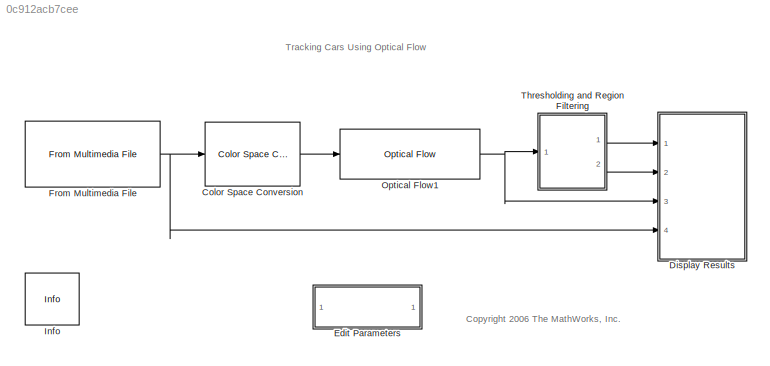
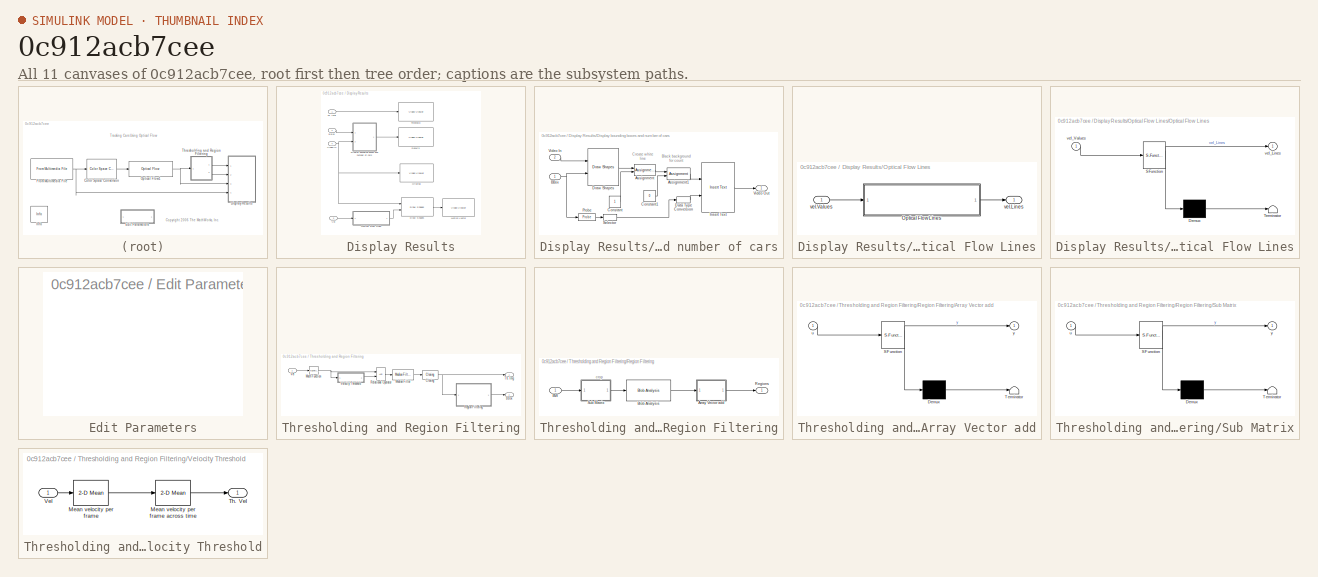
[diagram: thumbnail index - all 11 canvases of the model, root first then tree order]
MODEL slx_0c912acb7cee
KIND model
CONFIG AbsTol = auto
CONFIG FixedStep = auto
CONFIG MaxStep = auto
CONFIG MinStep = auto
CONFIG RelTol = 1e-3
CONFIG SampleTimeConstraint = Unconstrained
CONFIG Solver = FixedStepDiscrete
CONFIG SolverMode = Auto
CONFIG SolverName = FixedStepDiscrete
CONFIG StartTime = 0.0
CONFIG StopTime = inf
WORKSPACE source: MATLAB code (in-file)
WORKSPACE line_row = 22
BLOCK [Reference] Color Space Conversion  REF=visionconversions/Color Space
 Conversion
  Ports = [1, 1]
  SourceBlock = visionconversions/Color Space\n Conversion
  SourceType = Color Space Conversion
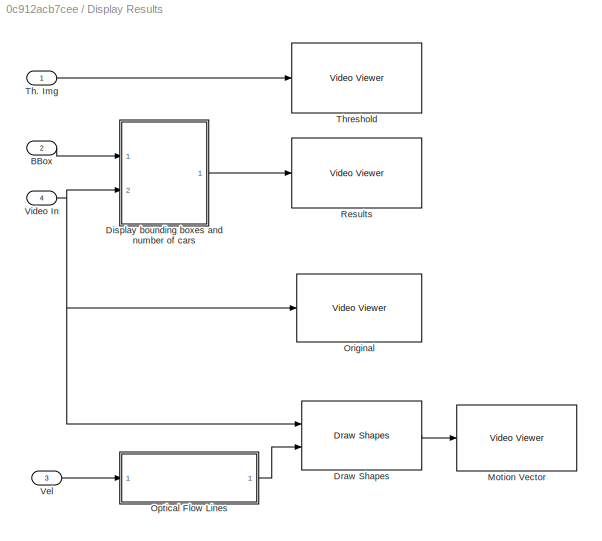
BLOCK [SubSystem] Display Results
  Ports = [4]
  RequestExecContextInheritance = off
  Variant = off
BLOCK [Inport] Display Results/BBox
  IconDisplay = Port number
  Port = 2
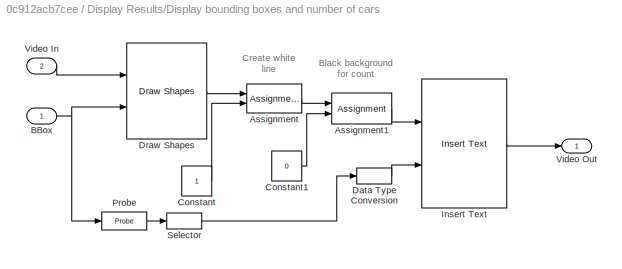
BLOCK [SubSystem] Display Results/Display bounding boxes and number of cars
  Ports = [2, 1]
  RequestExecContextInheritance = off
  Variant = off
BLOCK [Assignment] Display Results/Display bounding boxes and number of cars/Assignment
  IndexOptions = Index vector (dialog),Assign all,Assign all
  Indices = [line_row:line_row+1],[],[]
  NumberOfDimensions = 3
  OutputSizes = 1, 1
  Ports = [2, 1]
BLOCK [Assignment] Display Results/Display bounding boxes and number of cars/Assignment1
  IndexOptions = Index vector (dialog),Index vector (dialog),Assign all
  Indices = [1:15],[1:30],[]
  NumberOfDimensions = 3
  OutputSizes = 1, 1
  Ports = [2, 1]
BLOCK [Inport] Display Results/Display bounding boxes and number of cars/BBox
  IconDisplay = Port number
BLOCK [Constant] Display Results/Display bounding boxes and number of cars/Constant
  OutDataTypeStr = single
BLOCK [Constant] Display Results/Display bounding boxes and number of cars/Constant1
  OutDataTypeStr = single
  Value = 0
BLOCK [DataTypeConversion] Display Results/Display bounding boxes and number of cars/Data Type Conversion
  OutDataTypeStr = uint8
  RndMeth = Floor
  SaturateOnIntegerOverflow = off
BLOCK [Reference] Display Results/Display bounding boxes and number of cars/Draw Shapes  REF=visiontextngfix/Draw Shapes
  Ports = [2, 1]
  SourceBlock = visiontextngfix/Draw Shapes
  SourceType = Draw Shapes
BLOCK [Reference] Display Results/Display bounding boxes and number of cars/Insert Text  REF=visiontextngfix/Insert Text
  Ports = [2, 1]
  SourceBlock = visiontextngfix/Insert Text
  SourceType = Insert Text
BLOCK [Probe] Display Results/Display bounding boxes and number of cars/Probe
  Ports = [1, 1]
  ProbeComplexSignal = off
  ProbeSampleTime = off
  ProbeSignalDimensions = on
  ProbeWidth = off
  ProbeWidthDataType = uint8
BLOCK [Selector] Display Results/Display bounding boxes and number of cars/Selector
  IndexOptions = Index vector (dialog),Index vector (dialog)
  Indices = 1,1
  InputPortWidth = 3
  NumberOfDimensions = 2
  OutputSizes = 99,1
  Ports = [1, 1]
BLOCK [Inport] Display Results/Display bounding boxes and number of cars/Video In
  IconDisplay = Port number
  Port = 2
BLOCK [Outport] Display Results/Display bounding boxes and number of cars/Video Out
  IconDisplay = Port number
BLOCK [Reference] Display Results/Draw Shapes  REF=visiontextngfix/Draw Shapes
  Ports = [2, 1]
  SourceBlock = visiontextngfix/Draw Shapes
  SourceType = Draw Shapes
BLOCK [Reference] Display Results/Motion Vector  REF=visionsinks/Video Viewer
  Ports = [1]
  SourceBlock = visionsinks/Video Viewer
  SourceType = Video Viewer
  UserDataPersistent = on
BLOCK [SubSystem] Display Results/Optical Flow Lines
  Ports = [1, 1]
  RequestExecContextInheritance = off
  Variant = off
BLOCK [SubSystem] Display Results/Optical Flow Lines/Optical Flow Lines
  ErrorFcn = Stateflow.Translate.translate
  PermitHierarchicalResolution = ExplicitOnly
  Ports = [1, 1]
  RequestExecContextInheritance = off
  SFBlockType = MATLAB Function
  TreatAsAtomicUnit = on
  Variant = off
BLOCK [Demux] Display Results/Optical Flow Lines/Optical Flow Lines/ Demux 
  Outputs = 1
  Ports = [1, 1]
BLOCK [S-Function] Display Results/Optical Flow Lines/Optical Flow Lines/ SFunction 
  EnableBusSupport = off
  FunctionName = sf_sfun
  Parameters = scaleFactor
  PortCounts = [1 2]
  Ports = [1, 2]
  SFunctionDeploymentMode = off
  Tag = Stateflow S-Function viptrafficof 1
BLOCK [Terminator] Display Results/Optical Flow Lines/Optical Flow Lines/ Terminator 
BLOCK [Outport] Display Results/Optical Flow Lines/Optical Flow Lines/vel_Lines
  IconDisplay = Port number
BLOCK [Inport] Display Results/Optical Flow Lines/Optical Flow Lines/vel_Values
  IconDisplay = Port number
BLOCK [Outport] Display Results/Optical Flow Lines/vel.Lines
  IconDisplay = Port number
BLOCK [Inport] Display Results/Optical Flow Lines/vel.Values
  IconDisplay = Port number
BLOCK [Reference] Display Results/Original  REF=visionsinks/Video Viewer
  Ports = [1]
  SourceBlock = visionsinks/Video Viewer
  SourceType = Video Viewer
  UserDataPersistent = on
BLOCK [Reference] Display Results/Results  REF=visionsinks/Video Viewer
  Ports = [1]
  SourceBlock = visionsinks/Video Viewer
  SourceType = Video Viewer
  UserDataPersistent = on
BLOCK [Inport] Display Results/Th. Img
  IconDisplay = Port number
BLOCK [Reference] Display Results/Threshold  REF=visionsinks/Video Viewer
  Ports = [1]
  SourceBlock = visionsinks/Video Viewer
  SourceType = Video Viewer
  UserDataPersistent = on
BLOCK [Inport] Display Results/Vel
  IconDisplay = Port number
  Port = 3
BLOCK [Inport] Display Results/Video In
  IconDisplay = Port number
  Port = 4
BLOCK [SubSystem] Edit Parameters
  Ports = []
  RequestExecContextInheritance = off
  Variant = off
BLOCK [Reference] From Multimedia File  REF=dspvision/From Multimedia File
  Ports = [0, 1]
  SourceBlock = dspvision/From Multimedia File
  SourceType = From Multimedia File
BLOCK [Reference] Info  REF=vipmisc/Info
  Ports = []
  SourceBlock = vipmisc/Info
  SourceType = Info
BLOCK [Reference] Optical Flow1  REF=visionanalysis/Optical Flow
  Ports = [1, 1]
  SourceBlock = visionanalysis/Optical Flow
  SourceType = Optical Flow
BLOCK [SubSystem] Thresholding and Region Filtering
  Ports = [1, 2]
  RequestExecContextInheritance = off
  Variant = off
BLOCK [Outport] Thresholding and Region Filtering/BBox
  IconDisplay = Port number
  Port = 2
BLOCK [Reference] Thresholding and Region Filtering/Closing  REF=visionmorphops/Closing
  Ports = [1, 1]
  SourceBlock = visionmorphops/Closing
  SourceType = Closing
BLOCK [Math] Thresholding and Region Filtering/Math Function
  Operator = magnitude^2
  Ports = [1, 1]
BLOCK [Reference] Thresholding and Region Filtering/Median Filter  REF=visionanalysis/Median Filter
  Ports = [1, 1]
  SourceBlock = visionanalysis/Median Filter
  SourceType = Median Filter
BLOCK [SubSystem] Thresholding and Region Filtering/Region Filtering
  Ports = [1, 1]
  RequestExecContextInheritance = off
  Variant = off
BLOCK [SubSystem] Thresholding and Region Filtering/Region Filtering/Array Vector add
  ErrorFcn = Stateflow.Translate.translate
  PermitHierarchicalResolution = ExplicitOnly
  Ports = [1, 1]
  RequestExecContextInheritance = off
  SFBlockType = MATLAB Function
  TreatAsAtomicUnit = on
  Variant = off
BLOCK [Demux] Thresholding and Region Filtering/Region Filtering/Array Vector add/ Demux 
  Outputs = 1
  Ports = [1, 1]
BLOCK [S-Function] Thresholding and Region Filtering/Region Filtering/Array Vector add/ SFunction 
  EnableBusSupport = off
  FunctionName = sf_sfun
  Parameters = line_row
  PortCounts = [1 2]
  Ports = [1, 2]
  SFunctionDeploymentMode = off
  Tag = Stateflow S-Function viptrafficof 2
BLOCK [Terminator] Thresholding and Region Filtering/Region Filtering/Array Vector add/ Terminator 
BLOCK [Inport] Thresholding and Region Filtering/Region Filtering/Array Vector add/u
  IconDisplay = Port number
BLOCK [Outport] Thresholding and Region Filtering/Region Filtering/Array Vector add/y
  IconDisplay = Port number
BLOCK [Inport] Thresholding and Region Filtering/Region Filtering/BW
  IconDisplay = Port number
BLOCK [Reference] Thresholding and Region Filtering/Region Filtering/Blob Analysis  REF=visionstatistics/Blob Analysis
  Ports = [1, 1]
  SourceBlock = visionstatistics/Blob Analysis
  SourceType = Blob Analysis
  Tag = vipblks_row_conv
BLOCK [Outport] Thresholding and Region Filtering/Region Filtering/Regions
  IconDisplay = Port number
BLOCK [SubSystem] Thresholding and Region Filtering/Region Filtering/Sub Matrix
  ErrorFcn = Stateflow.Translate.translate
  PermitHierarchicalResolution = ExplicitOnly
  Ports = [1, 1]
  RequestExecContextInheritance = off
  SFBlockType = MATLAB Function
  TreatAsAtomicUnit = on
  Variant = off
BLOCK [Demux] Thresholding and Region Filtering/Region Filtering/Sub Matrix/ Demux 
  Outputs = 1
  Ports = [1, 1]
BLOCK [S-Function] Thresholding and Region Filtering/Region Filtering/Sub Matrix/ SFunction 
  EnableBusSupport = off
  FunctionName = sf_sfun
  Parameters = line_row
  PortCounts = [1 2]
  Ports = [1, 2]
  SFunctionDeploymentMode = off
  Tag = Stateflow S-Function viptrafficof 3
BLOCK [Terminator] Thresholding and Region Filtering/Region Filtering/Sub Matrix/ Terminator 
BLOCK [Inport] Thresholding and Region Filtering/Region Filtering/Sub Matrix/u
  IconDisplay = Port number
BLOCK [Outport] Thresholding and Region Filtering/Region Filtering/Sub Matrix/y
  IconDisplay = Port number
BLOCK [RelationalOperator] Thresholding and Region Filtering/Relational Operator
  InputSameDT = off
  OutDataTypeStr = boolean
  Ports = [2, 1]
BLOCK [Outport] Thresholding and Region Filtering/Th. Img
  IconDisplay = Port number
BLOCK [Inport] Thresholding and Region Filtering/Vel
  IconDisplay = Port number
BLOCK [SubSystem] Thresholding and Region Filtering/Velocity Threshold
  Ports = [1, 1]
  RequestExecContextInheritance = off
  Variant = off
BLOCK [Reference] Thresholding and Region Filtering/Velocity Threshold/Mean velocity per frame  REF=visionstatistics/2-D Mean
  Ports = [1, 1]
  SourceBlock = visionstatistics/2-D Mean
  SourceType = 2-D Mean
  UserDataPersistent = on
BLOCK [Reference] Thresholding and Region Filtering/Velocity Threshold/Mean velocity per frame across time  REF=visionstatistics/2-D Mean
  Ports = [1, 1]
  SourceBlock = visionstatistics/2-D Mean
  SourceType = 2-D Mean
  UserDataPersistent = on
BLOCK [Outport] Thresholding and Region Filtering/Velocity Threshold/Th. Vel
  IconDisplay = Port number
BLOCK [Inport] Thresholding and Region Filtering/Velocity Threshold/Vel
  IconDisplay = Port number
ANNOTATION (root): <copyright redacted>
ANNOTATION (root): Tracking Cars Using Optical Flow
ANNOTATION Display Results/Display bounding boxes and number of cars: Black background for count
ANNOTATION Display Results/Display bounding boxes and number of cars: Create white line
ANNOTATION Thresholding and Region Filtering/Region Filtering: crop
LINE Color Space Conversion:1 -> Optical Flow1:1
LINE Display Results/BBox:1 -> Display Results/Display bounding boxes and number of cars:1
LINE Display Results/Display bounding boxes and number of cars/Assignment1:1 -> Display Results/Display bounding boxes and number of cars/Insert Text:1
LINE Display Results/Display bounding boxes and number of cars/Assignment:1 -> Display Results/Display bounding boxes and number of cars/Assignment1:1
NET Display Results/Display bounding boxes and number of cars/BBox:1 -> Display Results/Display bounding boxes and number of cars/Draw Shapes:2, Display Results/Display bounding boxes and number of cars/Probe:1
LINE Display Results/Display bounding boxes and number of cars/Constant1:1 -> Display Results/Display bounding boxes and number of cars/Assignment1:2
LINE Display Results/Display bounding boxes and number of cars/Constant:1 -> Display Results/Display bounding boxes and number of cars/Assignment:2
LINE Display Results/Display bounding boxes and number of cars/Data Type Conversion:1 -> Display Results/Display bounding boxes and number of cars/Insert Text:2
LINE Display Results/Display bounding boxes and number of cars/Draw Shapes:1 -> Display Results/Display bounding boxes and number of cars/Assignment:1
LINE Display Results/Display bounding boxes and number of cars/Insert Text:1 -> Display Results/Display bounding boxes and number of cars/Video Out:1
LINE Display Results/Display bounding boxes and number of cars/Probe:1 -> Display Results/Display bounding boxes and number of cars/Selector:1
LINE Display Results/Display bounding boxes and number of cars/Selector:1 -> Display Results/Display bounding boxes and number of cars/Data Type Conversion:1
LINE Display Results/Display bounding boxes and number of cars/Video In:1 -> Display Results/Display bounding boxes and number of cars/Draw Shapes:1
LINE Display Results/Display bounding boxes and number of cars:1 -> Display Results/Results:1
LINE Display Results/Draw Shapes:1 -> Display Results/Motion Vector:1
LINE Display Results/Optical Flow Lines/Optical Flow Lines:1 -> Display Results/Optical Flow Lines/vel.Lines:1
LINE Display Results/Optical Flow Lines/vel.Values:1 -> Display Results/Optical Flow Lines/Optical Flow Lines:1
LINE Display Results/Optical Flow Lines:1 -> Display Results/Draw Shapes:2
LINE Display Results/Th. Img:1 -> Display Results/Threshold:1
LINE Display Results/Vel:1 -> Display Results/Optical Flow Lines:1
NET Display Results/Video In:1 -> Display Results/Display bounding boxes and number of cars:2, Display Results/Draw Shapes:1, Display Results/Original:1
NET From Multimedia File:1 -> Color Space Conversion:1, Display Results:4
NET Optical Flow1:1 -> Display Results:3, Thresholding and Region Filtering:1
NET Thresholding and Region Filtering/Closing:1 -> Thresholding and Region Filtering/Region Filtering:1, Thresholding and Region Filtering/Th. Img:1
NET Thresholding and Region Filtering/Math Function:1 -> Thresholding and Region Filtering/Relational Operator:1, Thresholding and Region Filtering/Velocity Threshold:1
LINE Thresholding and Region Filtering/Median Filter:1 -> Thresholding and Region Filtering/Closing:1
LINE Thresholding and Region Filtering/Region Filtering/Array Vector add:1 -> Thresholding and Region Filtering/Region Filtering/Regions:1
LINE Thresholding and Region Filtering/Region Filtering/BW:1 -> Thresholding and Region Filtering/Region Filtering/Sub Matrix:1
LINE Thresholding and Region Filtering/Region Filtering/Blob Analysis:1 -> Thresholding and Region Filtering/Region Filtering/Array Vector add:1
LINE Thresholding and Region Filtering/Region Filtering/Sub Matrix:1 -> Thresholding and Region Filtering/Region Filtering/Blob Analysis:1
LINE Thresholding and Region Filtering/Region Filtering:1 -> Thresholding and Region Filtering/BBox:1
LINE Thresholding and Region Filtering/Relational Operator:1 -> Thresholding and Region Filtering/Median Filter:1
LINE Thresholding and Region Filtering/Vel:1 -> Thresholding and Region Filtering/Math Function:1
LINE Thresholding and Region Filtering/Velocity Threshold/Mean velocity per frame across time:1 -> Thresholding and Region Filtering/Velocity Threshold/Th. Vel:1
LINE Thresholding and Region Filtering/Velocity Threshold/Mean velocity per frame:1 -> Thresholding and Region Filtering/Velocity Threshold/Mean velocity per frame across time:1
LINE Thresholding and Region Filtering/Velocity Threshold/Vel:1 -> Thresholding and Region Filtering/Velocity Threshold/Mean velocity per frame:1
LINE Thresholding and Region Filtering/Velocity Threshold:1 -> Thresholding and Region Filtering/Relational Operator:2
LINE Thresholding and Region Filtering:1 -> Display Results:1
LINE Thresholding and Region Filtering:2 -> Display Results:2
note: NET lines group one-source signal fan-out (src -> all destinations, sorted); 1:1 wires keep LINE
CHART Display Results/Optical Flow Lines/Optical Flow Lines states=1 transitions=1
  STATE_LABEL 'eML_blk_kernel()'
  STATE_LABEL 'SCRIPT:\nfunction vel_Lines=OpticalFlowLines(vel_Values, scaleFactor) \n\n% Generates the coordinate points of optical flow lines\n\npersistent first_time;\npersistent X;\npersistent Y;\npersistent RV;\npersistent CV;\nif isempty(first_time)\n    first_time     = 1;\n    %% user may change the following three parameters\n    borderOffset   = 5;\n    decimFactorRow = 5;\n    decimFactorCol = 5;    \n    %%\n    [R ...<+284ch>'
CHART Thresholding and
Region Filtering/Region Filtering/Array Vector add states=1 transitions=1
  STATE_LABEL 'eML_blk_kernel()'
  STATE_LABEL 'SCRIPT:\nfunction y = fcn(u, line_row)\n%#codegen\ndim=size(u);\nrepVector = zeros(dim);\nrepVector=repmat([0 line_row 0 0],dim(1),1); \n\ny = int32(u+int32(repVector));'
CHART Thresholding and
Region Filtering/Region Filtering/Sub Matrix states=1 transitions=1
  STATE_LABEL 'eML_blk_kernel()'
  STATE_LABEL 'SCRIPT:\nfunction y = fcn(u, line_row)\n%#codegen\n\nl=size(u);\n\ny = u(line_row:l(1),:);'
